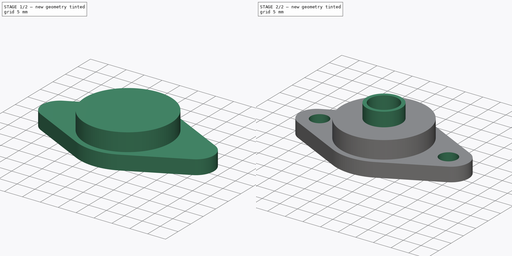
[diagram: build sequence overview — one tinted view per stage of 2, left to right]
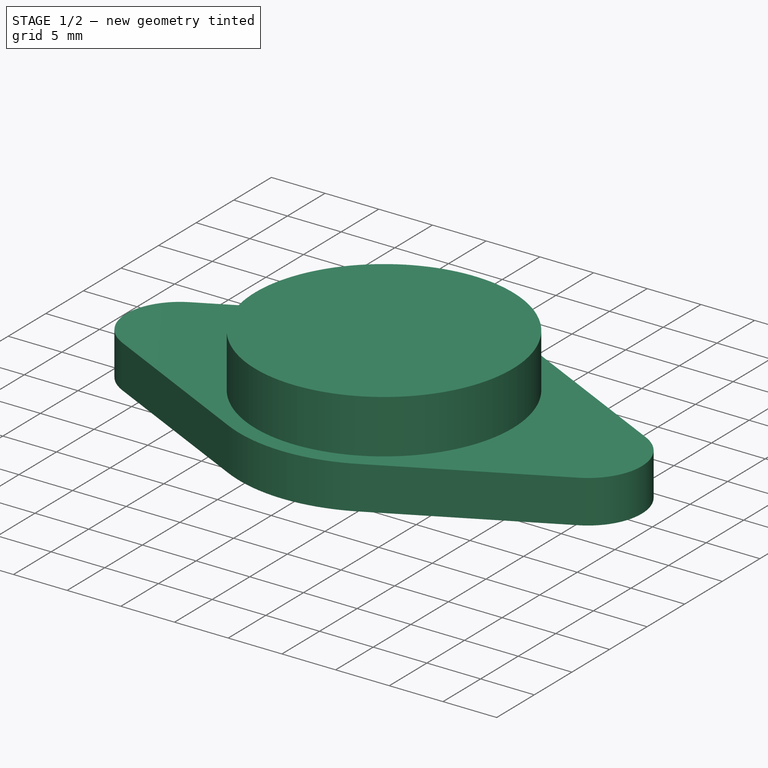
[diagram: stage 1 of 2 — iso view after this stage's code; geometry added in this stage tinted green]
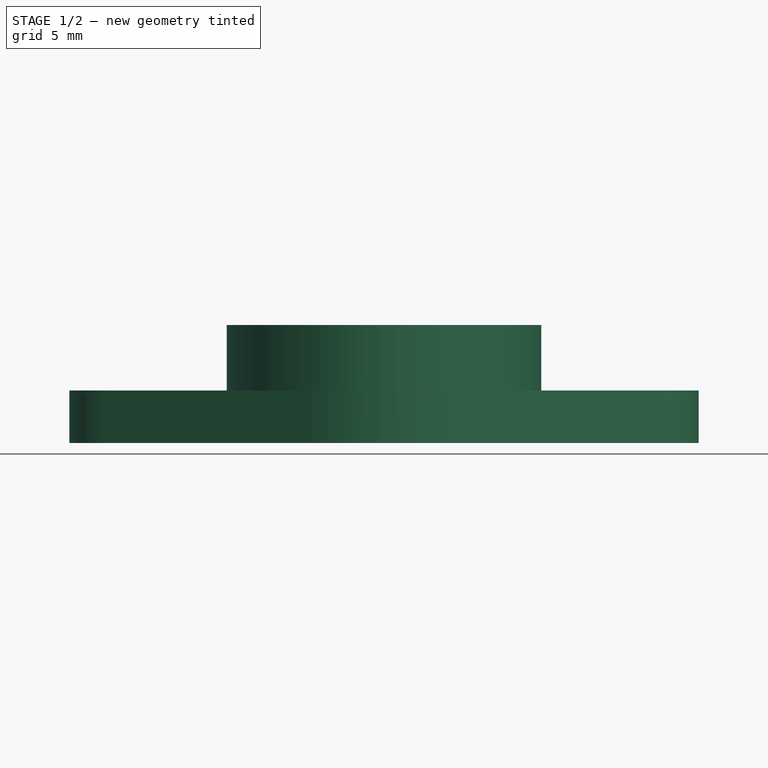
[diagram: stage 1 of 2 — front view after this stage's code; geometry added in this stage tinted green]
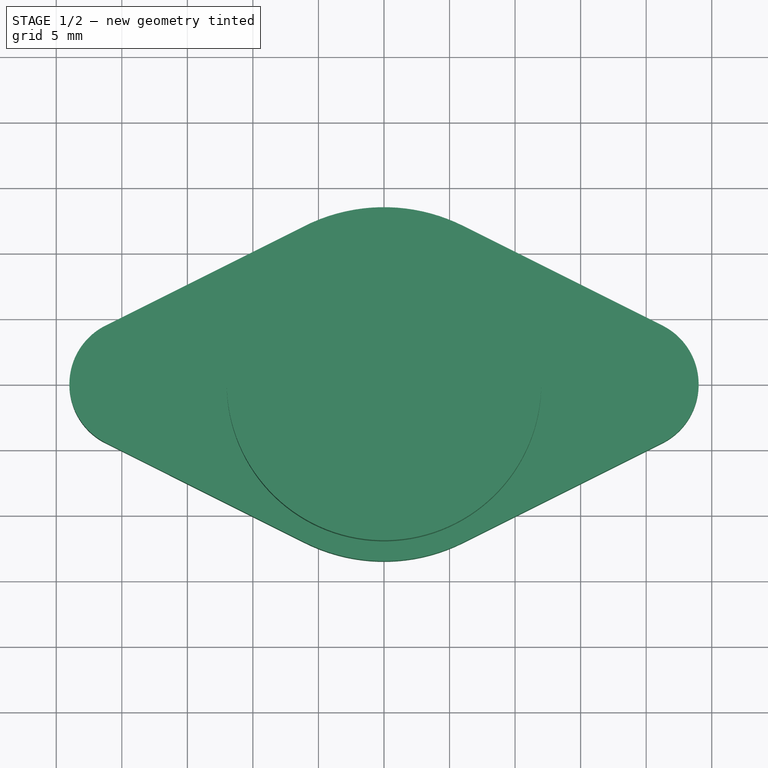
[diagram: stage 1 of 2 — top view after this stage's code; geometry added in this stage tinted green]
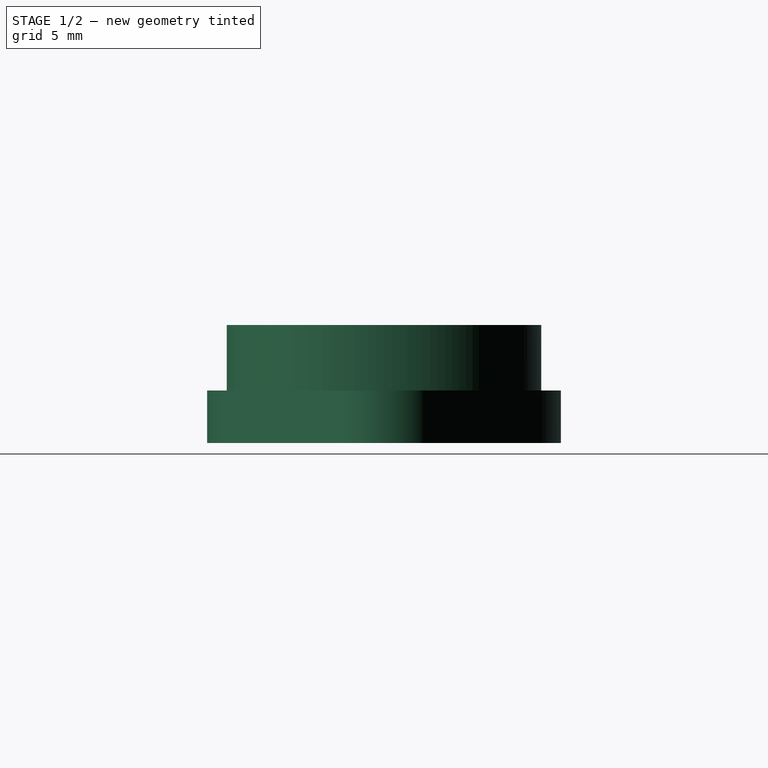
[diagram: stage 1 of 2 — right view after this stage's code; geometry added in this stage tinted green]
FCSTD DOCUMENT  (FreeCAD 0.17R10423 (Git))
Label: kfl08
License: All rights reserved
LicenseURL: http://en.wikipedia.org/wiki/All_rights_reserved
objects: Sketcher::SketchObject×4, PartDesign::Pad×3, PartDesign::Pocket×1, PartDesign::Body×1
note: 13 computed .brp shape members not serialized (recipe doc carries the construction recipe); baked Part::Feature solids carry a one-line shape summary decoded from their .brp

FEATURE [Sketcher::SketchObject] Sketch001
  MapMode = 5
  Support = -> [XY_Plane]
  sketch-geometry (3):
    g0: Circle CenterX=0 CenterY=0 CenterZ=0 NormalX=0 NormalY=0 NormalZ=1 Radius=4
    g1: Circle CenterX=18.25 CenterY=0 CenterZ=0 NormalX=0 NormalY=0 NormalZ=1 Radius=2.5
    g2: Circle CenterX=-18.25 CenterY=0 CenterZ=0 NormalX=0 NormalY=0 NormalZ=1 Radius=2.5
  constraints (8):
    c: PointOnObject(g1,g-1)
    c: PointOnObject(g2,g-1)
    c: Radius(g2) = 2.5
    c: Equal(g2,g1)
    c: Symmetric(g2,g1,g-2)
    c: DistanceX(g2,g1) = 36.5
    c: Coincident(g-1,g0)
    c: Radius(g0) = 4
FEATURE [Sketcher::SketchObject] Sketch002
  MapMode = 5
  Support = -> [XY_Plane]
  sketch-geometry (1):
    g0: Circle CenterX=0 CenterY=0 CenterZ=0 NormalX=0 NormalY=0 NormalZ=1 Radius=12
  constraints (2):
    c: Coincident(g0,g-1)
    c: Radius(g0) = 12
FEATURE [Sketcher::SketchObject] Sketch003
  MapMode = 5
  Support = -> [XY_Plane]
  sketch-geometry (1):
    g0: Circle CenterX=0 CenterY=0 CenterZ=0 NormalX=0 NormalY=0 NormalZ=1 Radius=5
  constraints (2):
    c: Coincident(g0,g-1)
    c: Radius(g0) = 5
FEATURE [Sketcher::SketchObject] Sketch004
  MapMode = 5
  Support = -> [XY_Plane]
  sketch-geometry (12):
    g0: ArcOfCircle CenterX=-19 CenterY=0 CenterZ=0 NormalX=0 NormalY=0 NormalZ=1 Radius=5 StartAngle=2.03462 EndAngle=4.24857
    g1: ArcOfCircle CenterX=19 CenterY=0 CenterZ=0 NormalX=0 NormalY=0 NormalZ=1 Radius=5 StartAngle=5.17621 EndAngle=7.39017
    g2: ArcOfCircle CenterX=0 CenterY=0 CenterZ=0 NormalX=0 NormalY=0 NormalZ=1 Radius=13.5 StartAngle=1.10698 EndAngle=2.03462
    g3: ArcOfCircle CenterX=0 CenterY=0 CenterZ=0 NormalX=0 NormalY=0 NormalZ=1 Radius=13.5 StartAngle=4.24857 EndAngle=5.17621
    g4: LineSegment StartX=-21.2368 StartY=4.47175 StartZ=0 EndX=-6.03947 EndY=12.0737 EndZ=0
    g5: LineSegment StartX=6.03947 StartY=-12.0737 StartZ=0 EndX=21.2368 EndY=-4.47176 EndZ=0
    g6: LineSegment StartX=6.03947 StartY=12.0737 StartZ=0 EndX=21.2368 EndY=4.47176 EndZ=0
    g7: LineSegment StartX=-21.2368 StartY=-4.47175 StartZ=0 EndX=-6.03947 EndY=-12.0737 EndZ=0
    g8: LineSegment [constr] StartX=24 StartY=13.5 StartZ=0 EndX=-24 EndY=13.5 EndZ=0
    g9: LineSegment [constr] StartX=-24 StartY=13.5 StartZ=0 EndX=-24 EndY=-13.5 EndZ=0
    g10: LineSegment [constr] StartX=-24 StartY=-13.5 StartZ=0 EndX=24 EndY=-13.5 EndZ=0
    g11: LineSegment [constr] StartX=24 StartY=-13.5 StartZ=0 EndX=24 EndY=13.5 EndZ=0
  constraints (36):
    c: Coincident(g2,g-1)
    c: Coincident(g3,g-1)
    c: Coincident(g4,g0)
    c: Coincident(g4,g2)
    c: Coincident(g5,g3)
    c: Coincident(g5,g1)
    c: Coincident(g6,g2)
    c: Coincident(g6,g1)
    c: Coincident(g7,g0)
    c: Coincident(g7,g3)
    c: Tangent(g0,g4)
    c: Tangent(g4,g2)
    c: Tangent(g0,g7)
    c: Tangent(g7,g3)
    c: Tangent(g3,g5)
    c: Tangent(g5,g1)
    c: Tangent(g1,g6)
    c: Tangent(g2,g6)
    c: Coincident(g8,g9)
    c: Coincident(g9,g10)
    c: Coincident(g10,g11)
    c: Coincident(g11,g8)
    c: Horizontal(g8)
    c: Horizontal(g10)
    c: Vertical(g9)
    c: Vertical(g11)
    c: DistanceY(g9,g9) = 27
    c: DistanceX(g8,g8) = 48
    c: Symmetric(g8,g10,g-1)
    c: Tangent(g1,g11)
    c: Tangent(g0,g9)
    c: Tangent(g2,g8)
    c: Tangent(g3,g10)
    c: Symmetric(g0,g1,g-1)
    c: DistanceY(g1,g-1) = 0
    c: Radius(g0) = 5
FEATURE [PartDesign::Pad] Pad003
  Length = 4
  Length2 = 100
  Profile = -> Sketch004
  Type = 0
FEATURE [PartDesign::Pad] Pad
  BaseFeature = -> Pad003
  Length = 9
  Length2 = 100
  Profile = -> Sketch002
  Type = 0
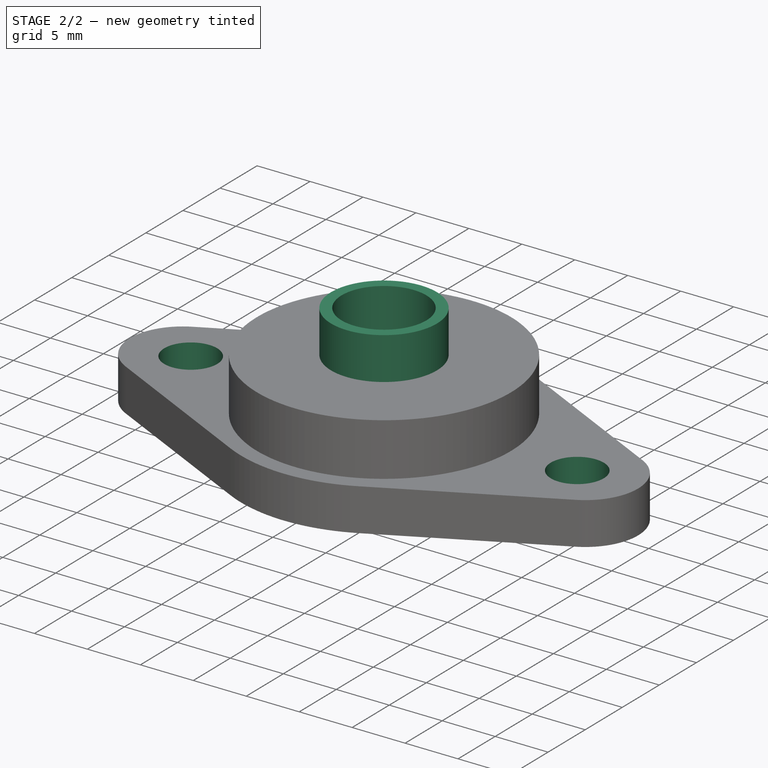
[diagram: stage 2 of 2 — iso view after this stage's code; geometry added in this stage tinted green]
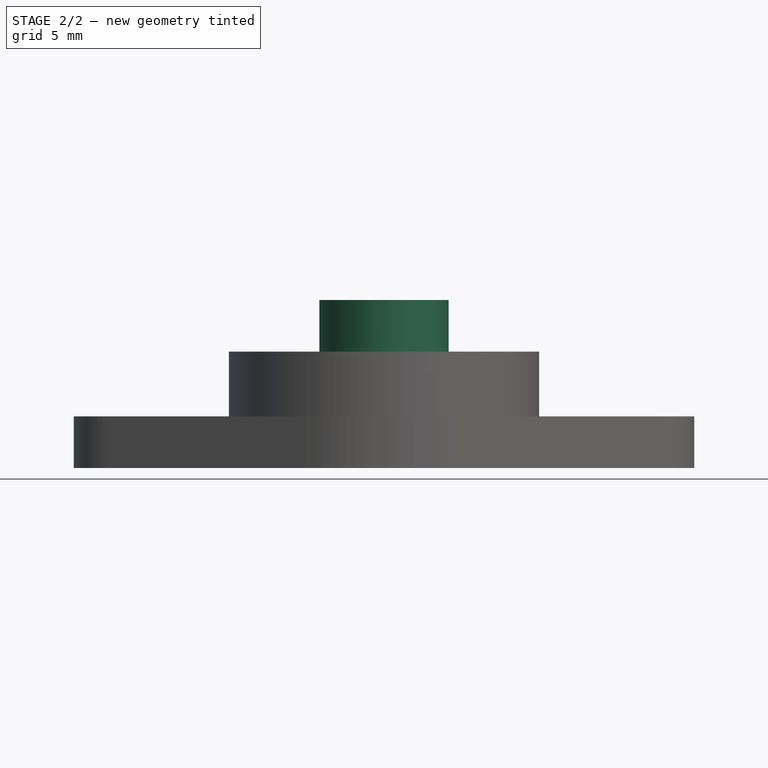
[diagram: stage 2 of 2 — front view after this stage's code; geometry added in this stage tinted green]
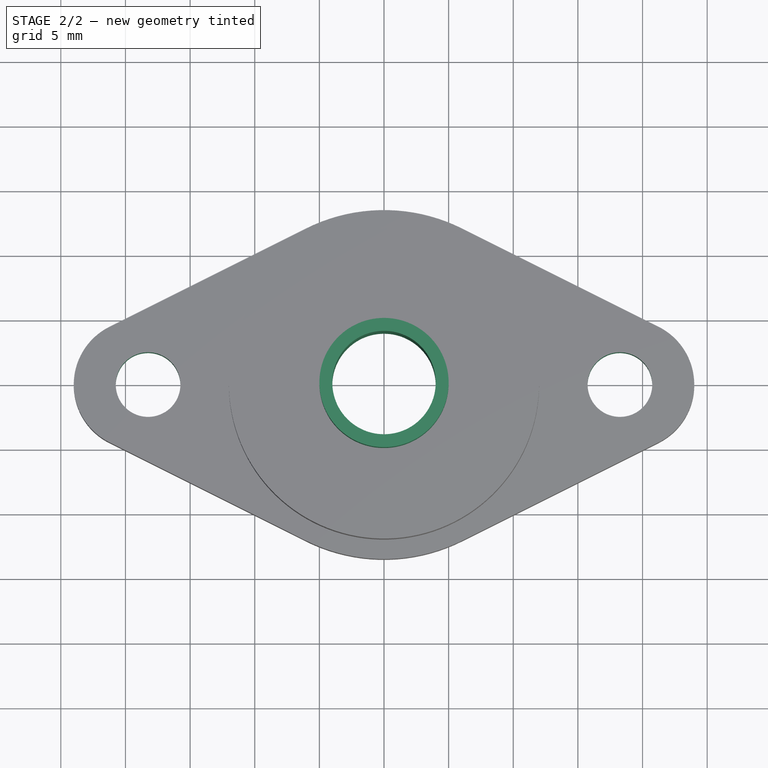
[diagram: stage 2 of 2 — top view after this stage's code; geometry added in this stage tinted green]
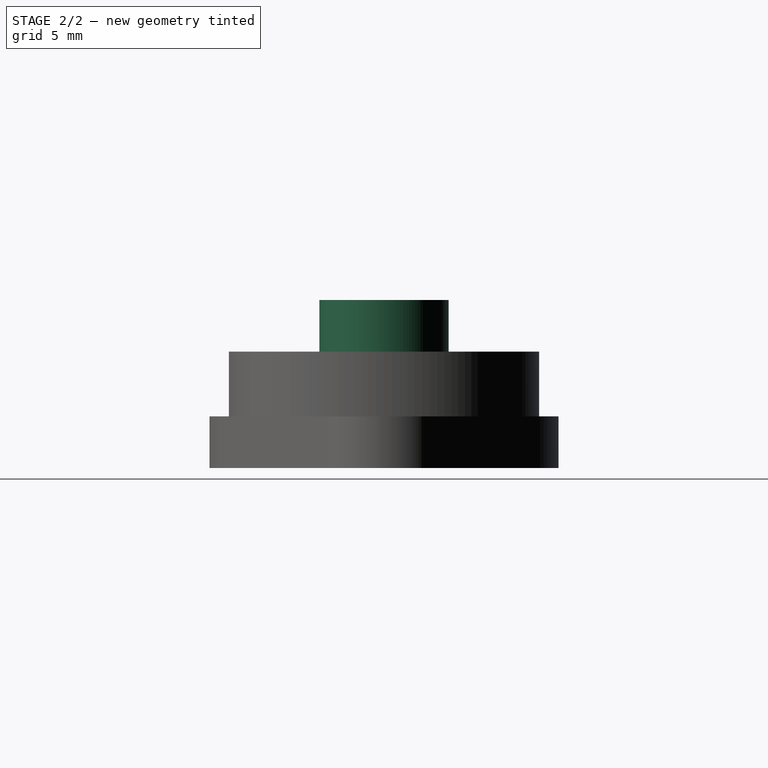
[diagram: stage 2 of 2 — right view after this stage's code; geometry added in this stage tinted green]
FEATURE [PartDesign::Pad] Pad004
  BaseFeature = -> Pad
  Length = 13
  Length2 = 100
  Profile = -> Sketch003
  Type = 0
FEATURE [PartDesign::Pocket] Pocket
  BaseFeature = -> Pad004
  Length = 5
  Midplane = true
  Profile = -> Sketch001
  Type = 1
FEATURE [PartDesign::Body] Body
  Group = -> [Pad003,Sketch001,Sketch002,Sketch003,Sketch004,Pad,Pad004,Pocket]
  Origin = -> BodyOrigin
  Tip = -> Pocket
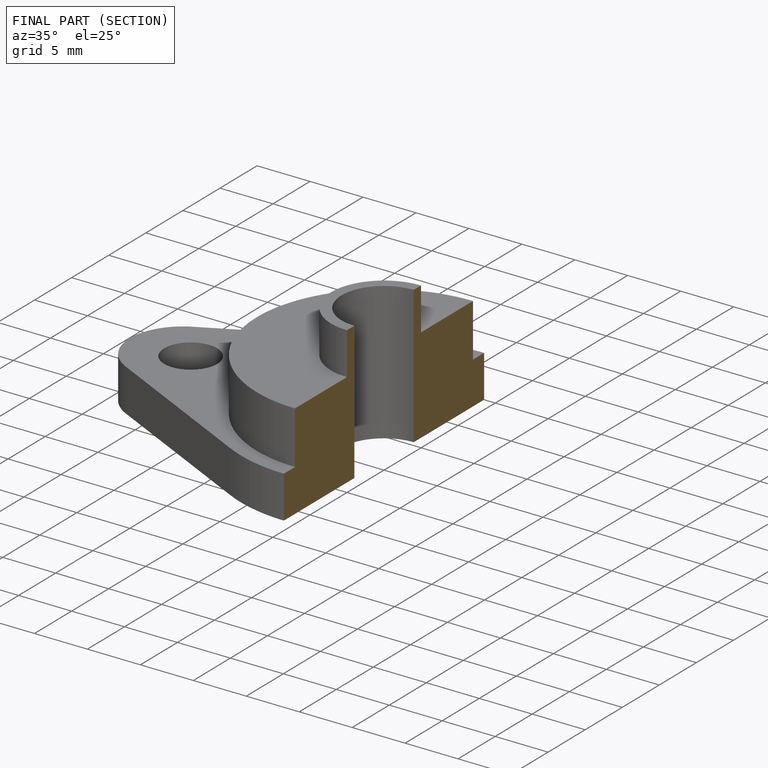
[diagram: finished part — half-section view (interior)]
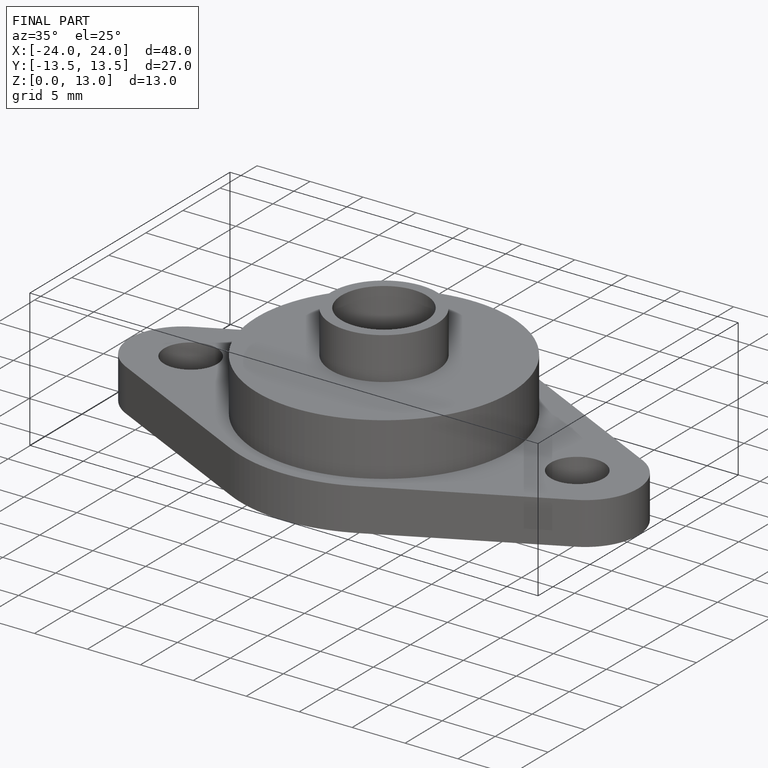
[diagram: finished part — iso view with bounding-box wireframe]
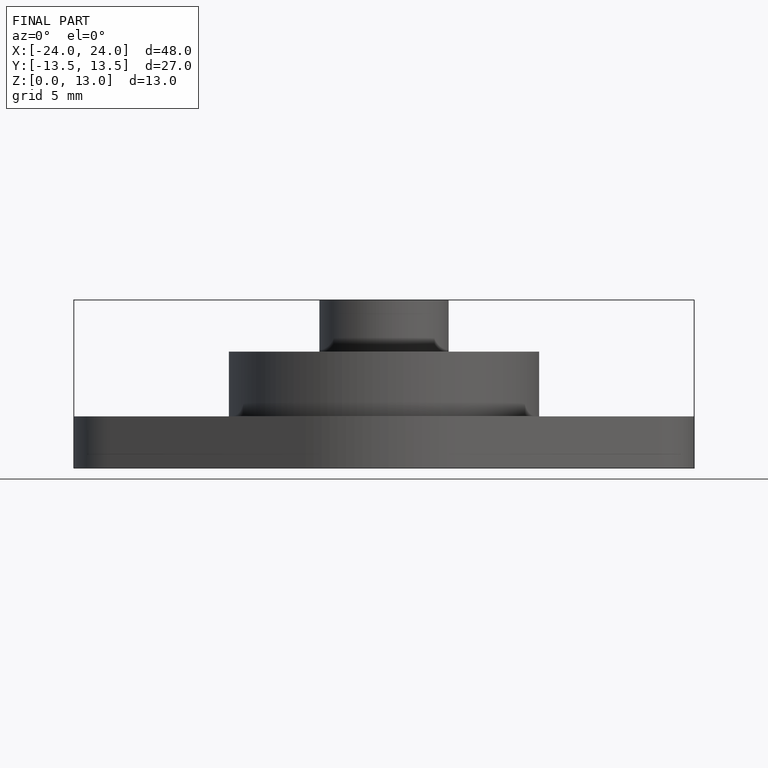
[diagram: finished part — front view with bounding-box wireframe]
